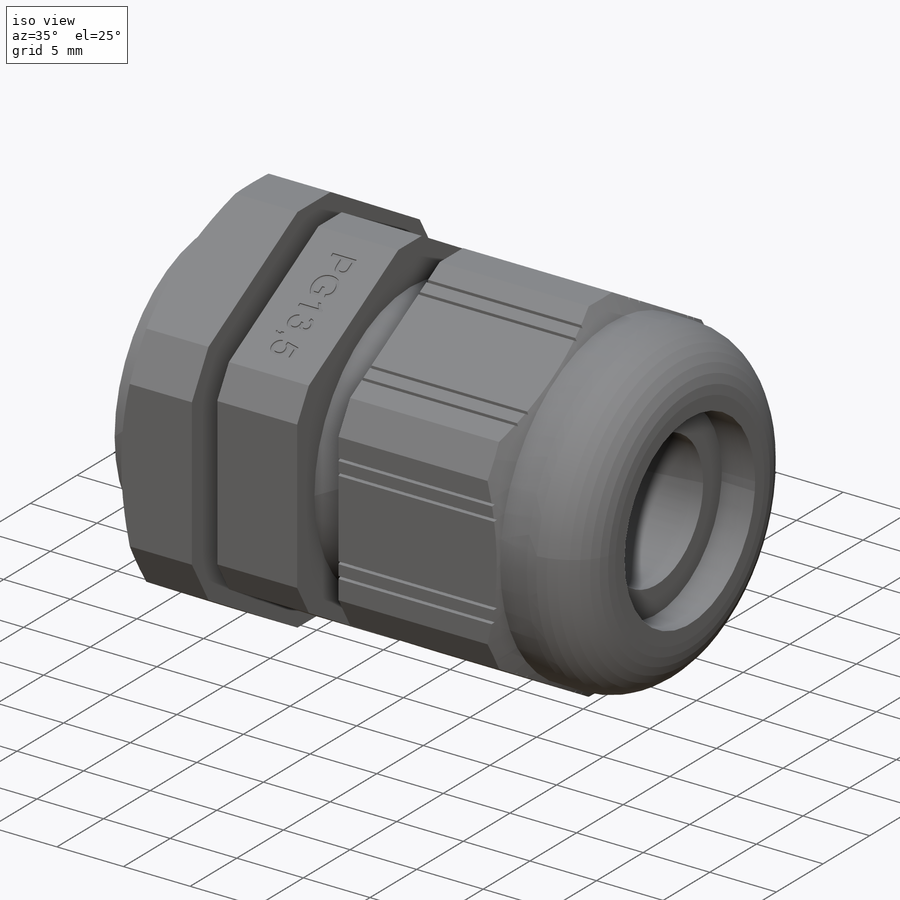
[diagram: iso view]
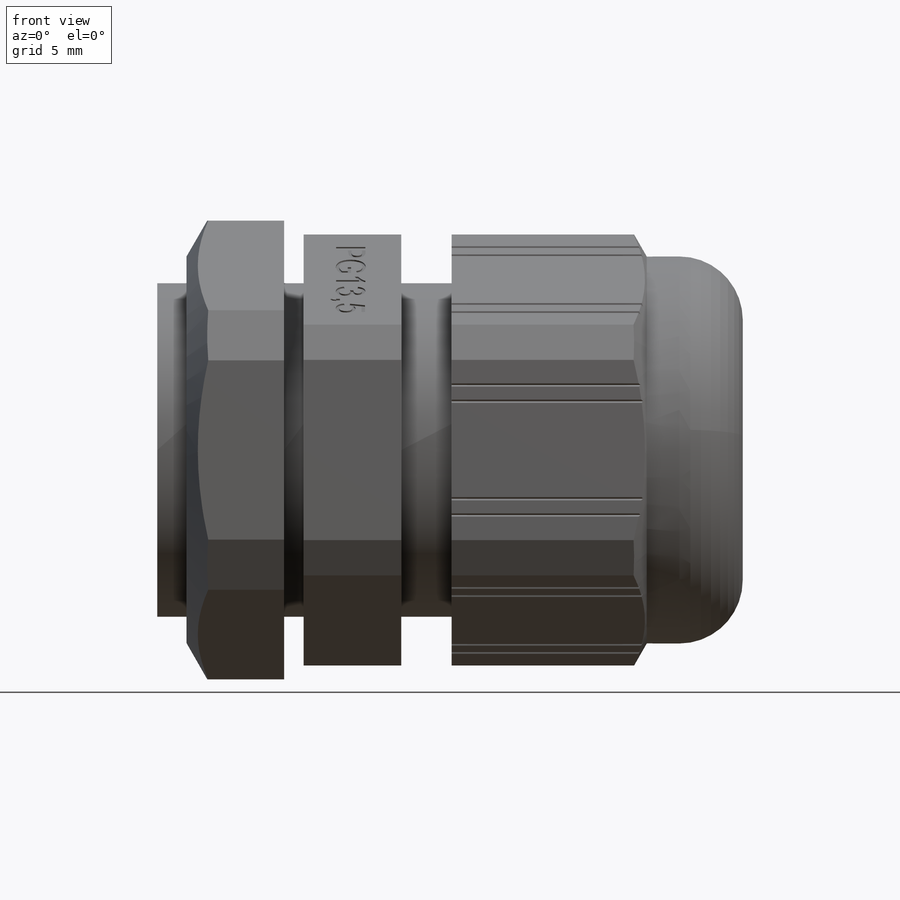
[diagram: front view]
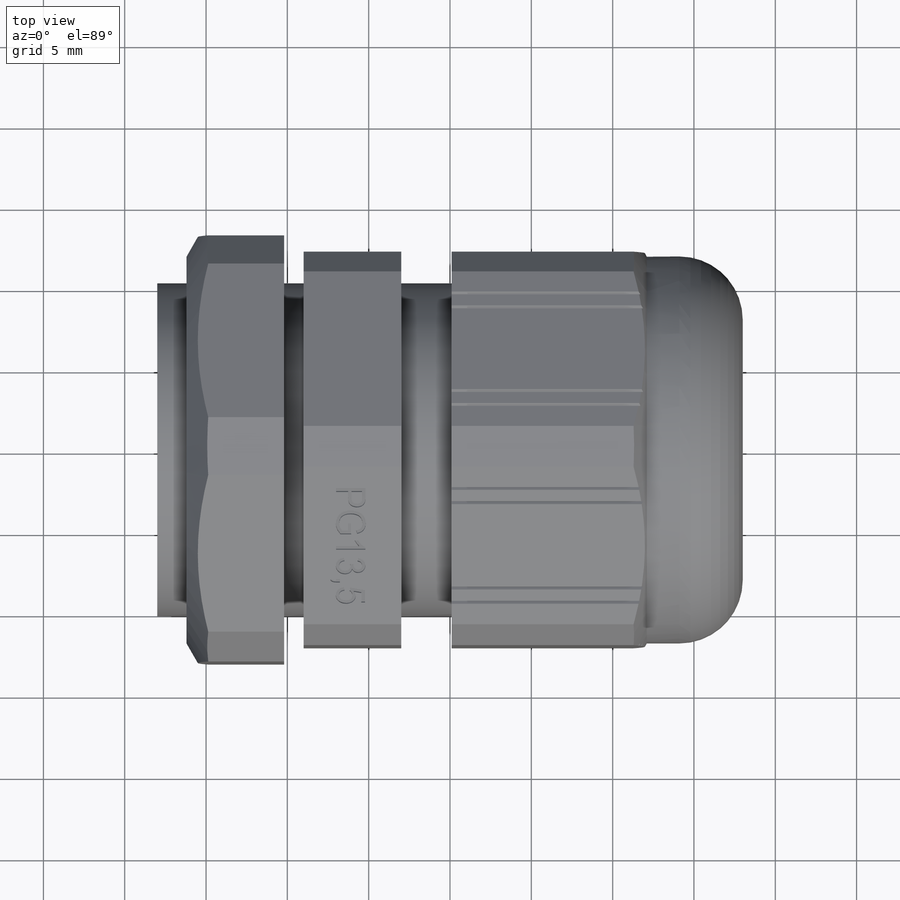
[diagram: top view]
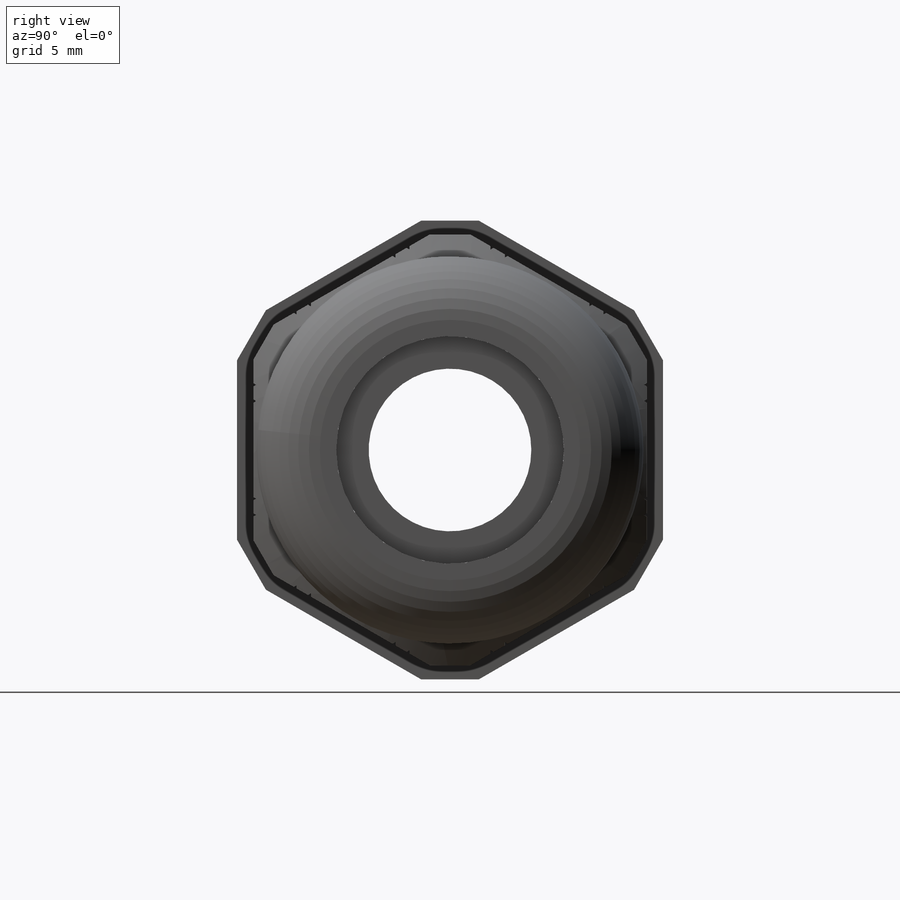
[diagram: right view]
SOLIDWORKS PART (.sldprt)
format: sldprt  version: not decoded by parser v0  size: 608,256 bytes
history: native  units: mm
features: sketch x8, plane x5, extrude x3, cut_extrude x3, cut_revolve x2, material x1, pattern_circular x1 (+9 scaffold rows collapsed)
feature tree (32):
  scaffold x9  (default folders/planes/origin — collapsed)
  material  "Náilon 6/10"
  plane  "Plano frontal"
  plane  "Plano superior"
  plane  "Plano direito"
  sketch  "Esboço1"  dims[D2=14.0mm D1=24.2mm]
  extrude  "Ressalto-extrusão1"  Depth=36mm
  sketch  "Esboço2"  dims[c1.D1=2.0mm c1.D2=1.0mm c1.D3=23.8mm c1.D4=2.0mm c2.D4=60.0deg c2.D5=12.0mm c2.D6=6.0mm c2.D7=27.0mm c2.D8=20.5mm]
  cut_revolve  "Corte-Revolução1"  Angle=360deg
  sketch  "Esboço3"  dims[D1=26.5mm]
  cut_extrude  "Corte-extrusão1"  Depth=36mm
  sketch  "Esboço5"  dims[D1=0.2mm D2=4.0mm D3=1.0mm]
  cut_extrude  "Corte-extrusão3"  [1 undecoded]
  pattern_circular  "PadrãoCircular2"  Count=6 Angle=60deg
  plane  "Plano1"  Offset=1.2mm
  sketch  "Esboço6"  dims[c1.D2=20.5mm c1.D1=1.0mm c2.D2=28.2mm]
  extrude  "PORCA"  Depth=6mm
  sketch  "Esboço7"  dims[c1.D1=~3.297073mm c2.D1=30.0deg c2.D2=5.0mm]
  cut_revolve  "Corte-Revolução2"  Angle=360deg
  plane  "Plano2"  Offset=2.5mm
  sketch  "Esboço8"  dims[D1=10.0mm]
  extrude  "BORRACHA"  Depth=10mm
  sketch  "Esboço9"  dims[D1=2.0mm]
  cut_extrude  "PG13,5"  Depth=0.1mm
decode coverage: 16 of 17 modeling features carry decoded parameters
note: ~ marks probable driven/reference dimensions
note: 1 parameter value undecoded
note: suppression state not decoded; provenance and decode notes live in map.json
